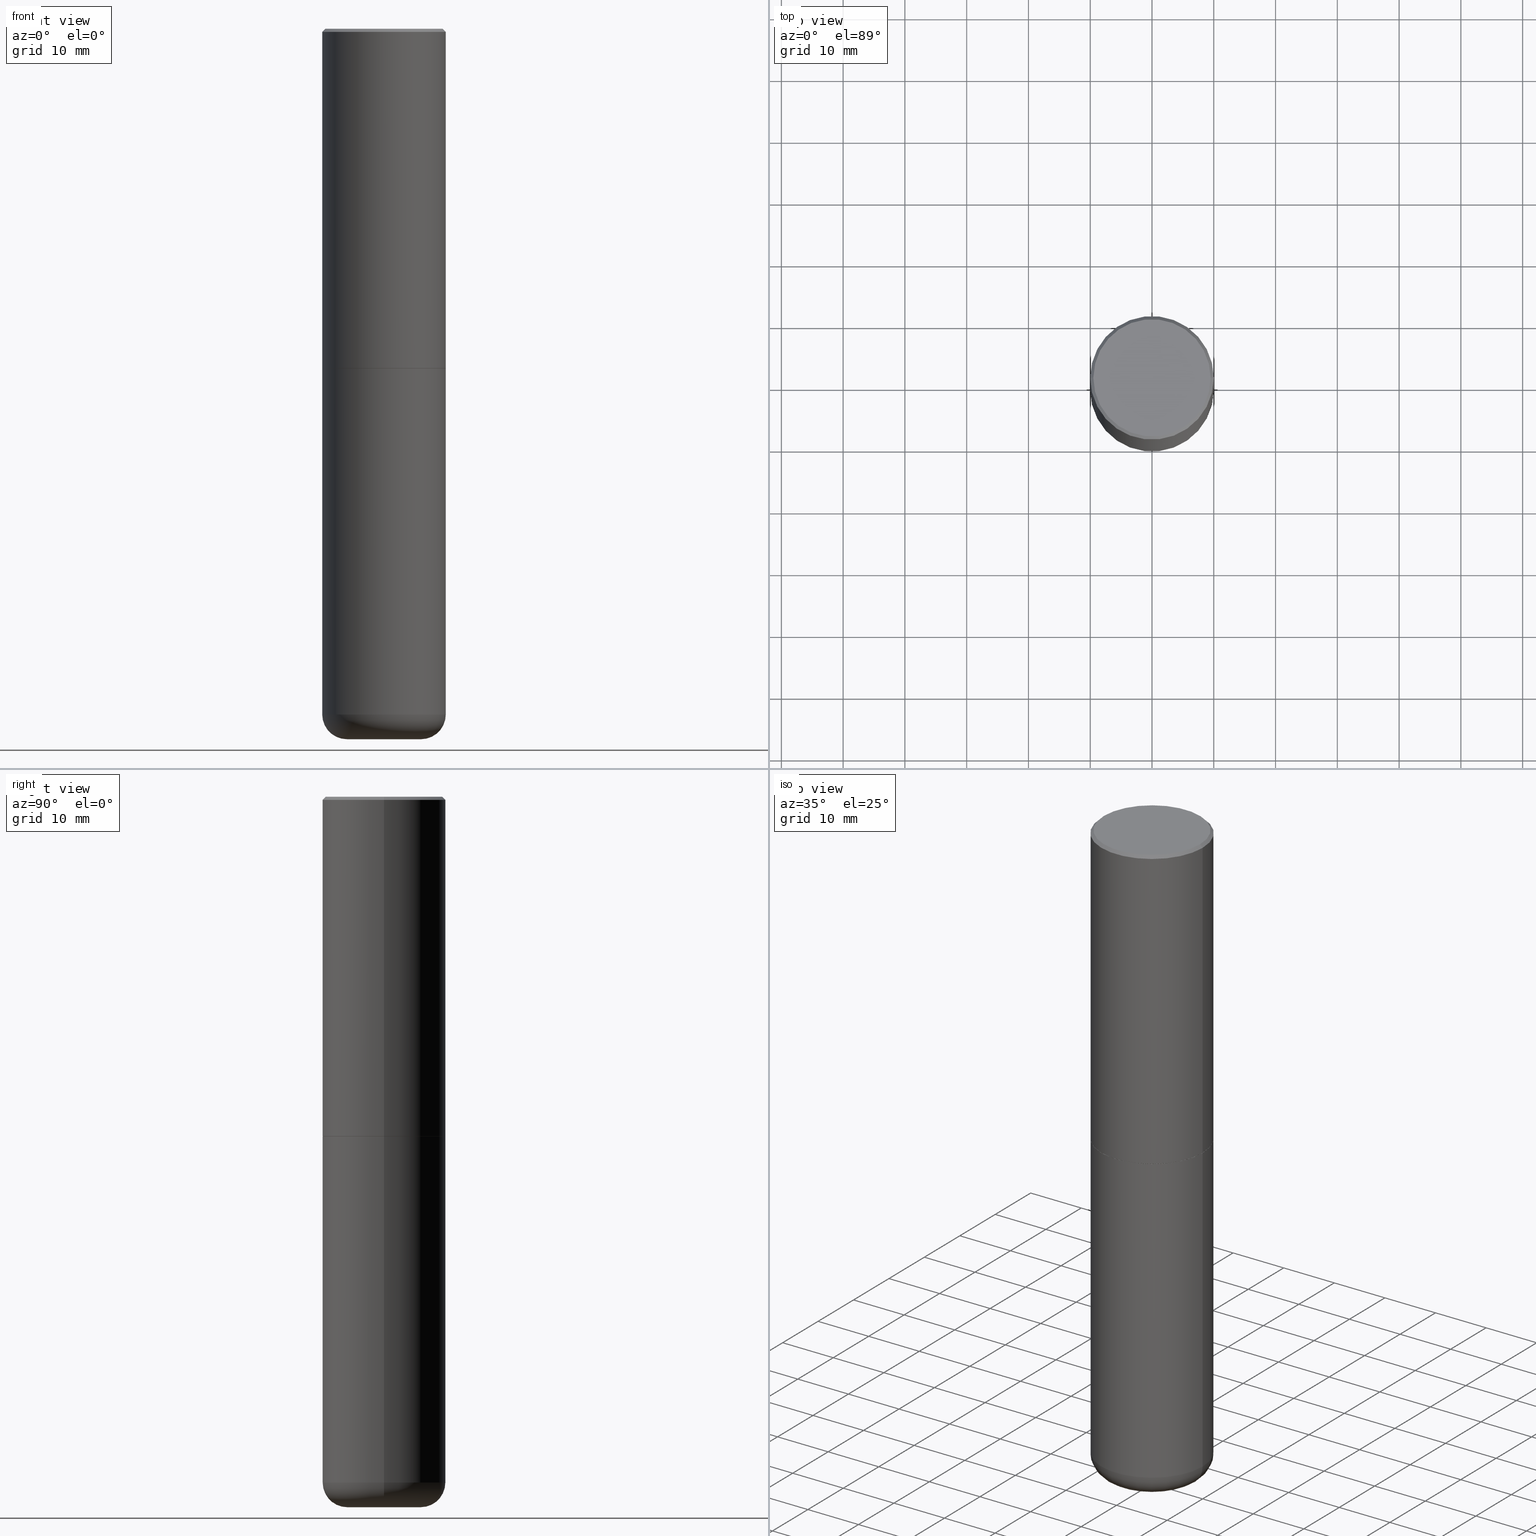
[diagram: canonical four-view strip — front | top / right | iso, engineering-drawing reading convention]
A machine part, canonical four-view strip (front | top / right | iso — engineering-drawing reading convention). The complete STEP part file that produces these views, byte-faithful:
ISO-10303-21;
HEADER;
FILE_DESCRIPTION (( 'STEP AP203' ),
    '1' );
FILE_NAME ('74837.STEP',
    '2024-05-02T19:22:41',
    ( '' ),
    ( '' ),
    'SwSTEP 2.0',
    'SolidWorks 2023',
    '' );
FILE_SCHEMA (( 'CONFIG_CONTROL_DESIGN' ));
ENDSEC;

DATA;
#1 = DATE_AND_TIME ( #328, #283 ) ;
#2 = CIRCLE ( 'NONE', #246, 0.3937000000000000499 ) ;
#3 = ADVANCED_FACE ( 'NONE', ( #124 ), #157, .F. ) ;
#4 = APPROVAL_DATE_TIME ( #344, #407 ) ;
#5 = VERTEX_POINT ( 'NONE', #263 ) ;
#6 = PERSON_AND_ORGANIZATION ( #203, #158 ) ;
#7 = DIRECTION ( 'NONE',  ( -2.445468806185136597E-29, 3.491481338843145583E-15, 1.000000000000000000 ) ) ;
#8 = AXIS2_PLACEMENT_3D ( 'NONE', #183, #410, #210 ) ;
#9 = ORIENTED_EDGE ( 'NONE', *, *, #236, .F. ) ;
#10 = CARTESIAN_POINT ( 'NONE',  ( -0.3937000000000001054, 2.797406750687515181E-15, -1.936584745033357016E-29 ) ) ;
#11 = VERTEX_POINT ( 'NONE', #304 ) ;
#12 = EDGE_CURVE ( 'NONE', #5, #191, #192, .T. ) ;
#13 = DIRECTION ( 'NONE',  ( -1.000000000000000000, 6.982962677686265922E-15, -4.876176775795935793E-29 ) ) ;
#14 = VECTOR ( 'NONE', #386, 39.37007874015748143 ) ;
#15 = ORIENTED_EDGE ( 'NONE', *, *, #324, .T. ) ;
#16 = CC_DESIGN_DATE_AND_TIME_ASSIGNMENT ( #123, #64, ( #178 ) ) ;
#17 = DIRECTION ( 'NONE',  ( -2.445468806185136597E-29, 3.491481338843145583E-15, 1.000000000000000000 ) ) ;
#18 = DIRECTION ( 'NONE',  ( 1.000000000000000000, -6.982962677686266711E-15, 4.877734241229876808E-29 ) ) ;
#19 = CARTESIAN_POINT ( 'NONE',  ( 0.000000000000000000, 0.000000000000000000, 0.000000000000000000 ) ) ;
#20 = CARTESIAN_POINT ( 'NONE',  ( -0.2362000000000000210, -1.357982065701307100E-14, -4.370099999999998985 ) ) ;
#21 = DIRECTION ( 'NONE',  ( 1.000000000000000000, -6.982962677686268288E-15, 0.000000000000000000 ) ) ;
#22 = CIRCLE ( 'NONE', #216, 0.3937000000000001054 ) ;
#23 = ORIENTED_EDGE ( 'NONE', *, *, #12, .F. ) ;
#24 = CARTESIAN_POINT ( 'NONE',  ( 1.068694322990966450E-28, -1.525812259887842897E-14, -4.370099999999998985 ) ) ;
#25 = PERSON_AND_ORGANIZATION ( #203, #158 ) ;
#26 = APPROVAL_ROLE ( '' ) ;
#27 = ORIENTED_EDGE ( 'NONE', *, *, #194, .F. ) ;
#28 = CONICAL_SURFACE ( 'NONE', #193, 0.3926999999999999935, 0.7853981633975507526 ) ;
#29 = SECURITY_CLASSIFICATION ( '', '', #65 ) ;
#30 = LENGTH_MEASURE_WITH_UNIT ( LENGTH_MEASURE( 0.02539999999999999897 ), #59 );
#31 = DIRECTION ( 'NONE',  ( -2.445468806185136597E-29, 3.491481338843145583E-15, 1.000000000000000000 ) ) ;
#32 = ORIENTED_EDGE ( 'NONE', *, *, #71, .T. ) ;
#33 = CARTESIAN_POINT ( 'NONE',  ( 5.295418152913293224E-29, -7.560453691130945845E-15, -2.165399999999999547 ) ) ;
#34 = VECTOR ( 'NONE', #47, 39.37007874015748143 ) ;
#35 = PERSON_AND_ORGANIZATION_ROLE ( 'design_supplier' ) ;
#36 = LOCAL_TIME ( 15, 22, 41.00000000000000000, #55 ) ;
#37 = CARTESIAN_POINT ( 'NONE',  ( -5.532412495976664402E-45, 7.898818803016371119E-31, 2.262311619753217762E-16 ) ) ;
#38 = AXIS2_PLACEMENT_3D ( 'NONE', #385, #31, #222 ) ;
#39 = APPLICATION_CONTEXT ( 'configuration controlled 3d designs of mechanical parts and assemblies' ) ;
#40 = ORIENTED_EDGE ( 'NONE', *, *, #278, .F. ) ;
#41 = VERTEX_POINT ( 'NONE', #70 ) ;
#42 = DIRECTION ( 'NONE',  ( 1.000000000000000000, -6.982962677686261977E-15, 0.000000000000000000 ) ) ;
#43 = VERTEX_POINT ( 'NONE', #239 ) ;
#44 = EDGE_CURVE ( 'NONE', #245, #342, #307, .T. ) ;
#45 = FACE_OUTER_BOUND ( 'NONE', #271, .T. ) ;
#46 = CIRCLE ( 'NONE', #336, 0.1575000000000000566 ) ;
#47 = DIRECTION ( 'NONE',  ( -2.445468806185136877E-29, 3.491481338843145188E-15, 1.000000000000000000 ) ) ;
#48 = CARTESIAN_POINT ( 'NONE',  ( 0.3926999999999999935, -1.030266313465834305E-14, -2.165399999999999547 ) ) ;
#49 = DIRECTION ( 'NONE',  ( -2.445468806185136597E-29, 3.491481338843145583E-15, 1.000000000000000000 ) ) ;
#50 = CARTESIAN_POINT ( 'NONE',  ( 0.3937000000000001054, -2.770807688499516128E-15, -0.02000000000000008715 ) ) ;
#51 = DESIGN_CONTEXT ( 'detailed design', #39, 'design' ) ;
#52 = PLANE ( 'NONE',  #163 ) ;
#53 = CIRCLE ( 'NONE', #282, 0.3926999999999999935 ) ;
#54 = DIRECTION ( 'NONE',  ( -2.445468806185136597E-29, 3.491481338843145583E-15, 1.000000000000000000 ) ) ;
#55 = COORDINATED_UNIVERSAL_TIME_OFFSET ( 5, 0, .BEHIND. ) ;
#56 = ADVANCED_FACE ( 'NONE', ( #202 ), #362, .T. ) ;
#57 = EDGE_LOOP ( 'NONE', ( #32, #190 ) ) ;
#58 = ADVANCED_FACE ( 'NONE', ( #398 ), #241, .T. ) ;
#59 =( LENGTH_UNIT ( ) NAMED_UNIT ( * ) SI_UNIT ( $, .METRE. ) );
#60 = AXIS2_PLACEMENT_3D ( 'NONE', #37, #7, #98 ) ;
#61 = CC_DESIGN_APPROVAL ( #228, ( #311 ) ) ;
#62 = CARTESIAN_POINT ( 'NONE',  ( -0.3937000000000002720, -1.015989167596965718E-15, -2.164399999999999658 ) ) ;
#63 = ORIENTED_EDGE ( 'NONE', *, *, #99, .F. ) ;
#64 = DATE_TIME_ROLE ( 'creation_date' ) ;
#65 = SECURITY_CLASSIFICATION_LEVEL ( 'unclassified' ) ;
#66 = AXIS2_PLACEMENT_3D ( 'NONE', #79, #49, #289 ) ;
#67 =( GEOMETRIC_REPRESENTATION_CONTEXT ( 3 ) GLOBAL_UNCERTAINTY_ASSIGNED_CONTEXT ( ( #221 ) ) GLOBAL_UNIT_ASSIGNED_CONTEXT ( ( #267, #414, #391 ) ) REPRESENTATION_CONTEXT ( 'NONE', 'WORKASPACE' ) );
#68 = COORDINATED_UNIVERSAL_TIME_OFFSET ( 5, 0, .BEHIND. ) ;
#69 = ORIENTED_EDGE ( 'NONE', *, *, #278, .T. ) ;
#70 = CARTESIAN_POINT ( 'NONE',  ( 0.2362000000000000766, -1.745740669421572042E-14, -4.527599999999999625 ) ) ;
#71 = EDGE_CURVE ( 'NONE', #195, #43, #94, .T. ) ;
#72 = ORIENTED_EDGE ( 'NONE', *, *, #44, .T. ) ;
#73 = CIRCLE ( 'NONE', #254, 0.1575000000000000566 ) ;
#74 = FACE_OUTER_BOUND ( 'NONE', #367, .T. ) ;
#75 = EDGE_CURVE ( 'NONE', #342, #175, #153, .T. ) ;
#76 = EDGE_LOOP ( 'NONE', ( #332, #265, #264, #357 ) ) ;
#77 = EDGE_LOOP ( 'NONE', ( #174, #140 ) ) ;
#78 = DIRECTION ( 'NONE',  ( 1.000000000000000000, -6.982962677686262766E-15, 0.000000000000000000 ) ) ;
#79 = CARTESIAN_POINT ( 'NONE',  ( 5.295418152913293224E-29, -7.560453691130945845E-15, -2.165399999999999547 ) ) ;
#80 = AXIS2_PLACEMENT_3D ( 'NONE', #24, #151, #42 ) ;
#81 = EDGE_LOOP ( 'NONE', ( #224, #229, #15, #333 ) ) ;
#82 = EDGE_CURVE ( 'NONE', #43, #195, #2, .T. ) ;
#83 = FACE_OUTER_BOUND ( 'NONE', #76, .T. ) ;
#84 = CARTESIAN_POINT ( 'NONE',  ( 1.068694322990966450E-28, -1.525812259887842897E-14, -4.370099999999998985 ) ) ;
#85 = AXIS2_PLACEMENT_3D ( 'NONE', #84, #17, #286 ) ;
#86 = CC_DESIGN_APPROVAL ( #407, ( #29 ) ) ;
#87 = ADVANCED_FACE ( 'NONE', ( #110 ), #319, .T. ) ;
#88 = CARTESIAN_POINT ( 'NONE',  ( 5.295418152913293224E-29, -7.560453691130945845E-15, -2.165399999999999547 ) ) ;
#89 = APPROVAL_STATUS ( 'not_yet_approved' ) ;
#90 = ORIENTED_EDGE ( 'NONE', *, *, #236, .T. ) ;
#91 = DIRECTION ( 'NONE',  ( 1.000000000000000000, -6.982962677686261977E-15, 0.000000000000000000 ) ) ;
#92 = ORIENTED_EDGE ( 'NONE', *, *, #117, .F. ) ;
#93 = FACE_OUTER_BOUND ( 'NONE', #379, .T. ) ;
#94 = CIRCLE ( 'NONE', #403, 0.3937000000000000499 ) ;
#95 = DIRECTION ( 'NONE',  ( 1.000000000000000000, -6.982962677686266711E-15, 4.876176775795935793E-29 ) ) ;
#96 = APPROVAL_ROLE ( '' ) ;
#97 = EDGE_LOOP ( 'NONE', ( #184, #284, #172, #371 ) ) ;
#98 = DIRECTION ( 'NONE',  ( 1.000000000000000000, -6.982962677686266711E-15, 4.877734241229876808E-29 ) ) ;
#99 = EDGE_CURVE ( 'NONE', #338, #195, #248, .T. ) ;
#100 = DIRECTION ( 'NONE',  ( -0.7071067811866199593, 7.493145998870616062E-15, 0.7071067811864750752 ) ) ;
#101 = ORIENTED_EDGE ( 'NONE', *, *, #82, .F. ) ;
#102 = DATE_AND_TIME ( #272, #113 ) ;
#103 = APPLICATION_CONTEXT ( 'configuration controlled 3d designs of mechanical parts and assemblies' ) ;
#104 = DIRECTION ( 'NONE',  ( -2.445468806185136597E-29, 3.491481338843145583E-15, 1.000000000000000000 ) ) ;
#105 = CONICAL_SURFACE ( 'NONE', #382, 0.3937000000000001054, 0.7853981633974453924 ) ;
#106 = CARTESIAN_POINT ( 'NONE',  ( 0.000000000000000000, 0.000000000000000000, 0.000000000000000000 ) ) ;
#107 = EDGE_LOOP ( 'NONE', ( #72, #390, #40, #405 ) ) ;
#108 = DIRECTION ( 'NONE',  ( 7.105427357601001859E-15, 1.000000000000000000, -3.491481338843145583E-15 ) ) ;
#109 = CARTESIAN_POINT ( 'NONE',  ( 1.107210456688382298E-28, -1.580803090974622389E-14, -4.527599999999999625 ) ) ;
#110 = FACE_OUTER_BOUND ( 'NONE', #107, .T. ) ;
#111 = CARTESIAN_POINT ( 'NONE',  ( 0.3736999999999999211, -2.667287895133367964E-15, 2.262311619753402158E-16 ) ) ;
#112 = CARTESIAN_POINT ( 'NONE',  ( -5.532412495976664402E-45, 7.898818803016371119E-31, 2.262311619753217762E-16 ) ) ;
#113 = LOCAL_TIME ( 15, 22, 41.00000000000000000, #68 ) ;
#114 = ADVANCED_FACE ( 'NONE', ( #137 ), #260, .T. ) ;
#115 = DIRECTION ( 'NONE',  ( -2.445468806185136597E-29, 3.491481338843145583E-15, 1.000000000000000000 ) ) ;
#116 = ADVANCED_FACE ( 'NONE', ( #281 ), #302, .T. ) ;
#117 = EDGE_CURVE ( 'NONE', #191, #5, #355, .T. ) ;
#118 = VECTOR ( 'NONE', #100, 39.37007874015748143 ) ;
#119 = APPROVAL_DATE_TIME ( #1, #127 ) ;
#120 = DIRECTION ( 'NONE',  ( -1.000000000000000000, 6.982962677686265922E-15, -4.876176775795935793E-29 ) ) ;
#121 = ORIENTED_EDGE ( 'NONE', *, *, #370, .F. ) ;
#122 = DIRECTION ( 'NONE',  ( -2.445468806185136597E-29, 3.491481338843145583E-15, 1.000000000000000000 ) ) ;
#123 = DATE_AND_TIME ( #356, #36 ) ;
#124 = FACE_OUTER_BOUND ( 'NONE', #326, .T. ) ;
#125 = AXIS2_PLACEMENT_3D ( 'NONE', #287, #173, #78 ) ;
#126 = PERSON_AND_ORGANIZATION ( #203, #158 ) ;
#127 = APPROVAL ( #89, 'UNSPECIFIED' ) ;
#128 = APPROVAL_DATE_TIME ( #240, #228 ) ;
#129 = ADVANCED_FACE ( 'NONE', ( #354 ), #52, .T. ) ;
#130 = CARTESIAN_POINT ( 'NONE',  ( 1.068694322990966450E-28, -1.525812259887842897E-14, -4.370099999999998985 ) ) ;
#131 = CARTESIAN_POINT ( 'NONE',  ( 0.000000000000000000, 0.000000000000000000, 0.000000000000000000 ) ) ;
#132 = VECTOR ( 'NONE', #247, 39.37007874015748143 ) ;
#133 = DIRECTION ( 'NONE',  ( 1.000000000000000000, -6.982962677686265922E-15, 4.876176775795935793E-29 ) ) ;
#134 = DIRECTION ( 'NONE',  ( 1.000000000000000000, -6.982962677686261977E-15, 4.883557194083110659E-29 ) ) ;
#135 = PRODUCT ( '74837', '74837', '', ( #365 ) ) ;
#136 = COORDINATED_UNIVERSAL_TIME_OFFSET ( 5, 0, .BEHIND. ) ;
#137 = FACE_OUTER_BOUND ( 'NONE', #81, .T. ) ;
#138 = ORIENTED_EDGE ( 'NONE', *, *, #285, .F. ) ;
#139 = ORIENTED_EDGE ( 'NONE', *, *, #117, .T. ) ;
#140 = ORIENTED_EDGE ( 'NONE', *, *, #320, .F. ) ;
#141 = VECTOR ( 'NONE', #213, 39.37007874015748143 ) ;
#142 = CC_DESIGN_SECURITY_CLASSIFICATION ( #29, ( #311 ) ) ;
#143 = DIRECTION ( 'NONE',  ( -1.000000000000000000, 6.982962677686266711E-15, 0.000000000000000000 ) ) ;
#144 = PLANE ( 'NONE',  #309 ) ;
#145 = DIRECTION ( 'NONE',  ( 2.445468806185136597E-29, -3.491481338843145583E-15, -1.000000000000000000 ) ) ;
#146 = PRODUCT_RELATED_PRODUCT_CATEGORY ( 'detail', '', ( #135 ) ) ;
#147 = DIRECTION ( 'NONE',  ( 2.438088387897960049E-29, -3.491481338843145188E-15, -1.000000000000000000 ) ) ;
#148 = DIRECTION ( 'NONE',  ( -2.445468806185136597E-29, 3.491481338843145583E-15, 1.000000000000000000 ) ) ;
#149 = DIRECTION ( 'NONE',  ( -2.445468806185136877E-29, 3.491481338843145188E-15, 1.000000000000000000 ) ) ;
#150 = VECTOR ( 'NONE', #149, 39.37007874015748143 ) ;
#151 = DIRECTION ( 'NONE',  ( -2.445468806185136597E-29, 3.491481338843145583E-15, 1.000000000000000000 ) ) ;
#152 = ADVANCED_FACE ( 'NONE', ( #301 ), #144, .F. ) ;
#153 = LINE ( 'NONE', #294, #14 ) ;
#154 = CARTESIAN_POINT ( 'NONE',  ( -0.2362000000000000766, -1.329522240803589203E-14, -4.527599999999999625 ) ) ;
#155 = DIRECTION ( 'NONE',  ( -2.445468806185136597E-29, 3.491481338843145583E-15, 1.000000000000000000 ) ) ;
#156 = AXIS2_PLACEMENT_3D ( 'NONE', #109, #381, #351 ) ;
#157 = PLANE ( 'NONE',  #334 ) ;
#158 = ORGANIZATION ( 'UNSPECIFIED', 'UNSPECIFIED', '' ) ;
#159 = APPLICATION_PROTOCOL_DEFINITION ( 'international standard', 'config_control_design', 1994, #103 ) ;
#160 = ADVANCED_BREP_SHAPE_REPRESENTATION ( '74837', ( #404, #266, #255 ), #67 ) ;
#161 = PERSON_AND_ORGANIZATION ( #203, #158 ) ;
#162 = CARTESIAN_POINT ( 'NONE',  ( 0.3937000000000001054, -2.770807688499516128E-15, -0.02000000000000008715 ) ) ;
#163 = AXIS2_PLACEMENT_3D ( 'NONE', #187, #226, #337 ) ;
#164 = CALENDAR_DATE ( 2024, 2, 5 ) ;
#165 = EDGE_CURVE ( 'NONE', #11, #342, #276, .T. ) ;
#166 = EDGE_CURVE ( 'NONE', #211, #43, #369, .T. ) ;
#167 = VERTEX_POINT ( 'NONE', #168 ) ;
#168 = CARTESIAN_POINT ( 'NONE',  ( 0.3926999999999999935, -1.030266313465834305E-14, -2.165399999999999547 ) ) ;
#169 = DIRECTION ( 'NONE',  ( -2.438088387897960049E-29, 3.491481338843145188E-15, 1.000000000000000000 ) ) ;
#170 = DIRECTION ( 'NONE',  ( -2.445468806185136597E-29, 3.491481338843145583E-15, 1.000000000000000000 ) ) ;
#171 = APPROVAL_PERSON_ORGANIZATION ( #394, #407, #96 ) ;
#172 = ORIENTED_EDGE ( 'NONE', *, *, #250, .T. ) ;
#173 = DIRECTION ( 'NONE',  ( -2.445468806185136597E-29, 3.491481338843145583E-15, 1.000000000000000000 ) ) ;
#174 = ORIENTED_EDGE ( 'NONE', *, *, #199, .F. ) ;
#175 = VERTEX_POINT ( 'NONE', #252 ) ;
#176 = CIRCLE ( 'NONE', #66, 0.3926999999999999935 ) ;
#177 = CARTESIAN_POINT ( 'NONE',  ( -0.3937000000000001054, 2.679362779428220707E-15, -0.02000000000000008715 ) ) ;
#178 = PRODUCT_DEFINITION ( 'UNKNOWN', '', #311, #51 ) ;
#179 = ORIENTED_EDGE ( 'NONE', *, *, #370, .T. ) ;
#180 = DIRECTION ( 'NONE',  ( 1.000000000000000000, -6.982962677686265133E-15, 0.000000000000000000 ) ) ;
#181 = EDGE_CURVE ( 'NONE', #167, #11, #53, .T. ) ;
#182 = DIRECTION ( 'NONE',  ( 1.000000000000000000, -6.982962677686268288E-15, 0.000000000000000000 ) ) ;
#183 = CARTESIAN_POINT ( 'NONE',  ( 4.890937612370294178E-31, -6.982962677686321191E-17, -0.02000000000000008715 ) ) ;
#184 = ORIENTED_EDGE ( 'NONE', *, *, #75, .F. ) ;
#185 = DIRECTION ( 'NONE',  ( -1.000000000000000000, 7.105427357601006592E-15, 0.000000000000000000 ) ) ;
#186 = AXIS2_PLACEMENT_3D ( 'NONE', #279, #104, #244 ) ;
#187 = CARTESIAN_POINT ( 'NONE',  ( 1.107210456688382298E-28, -1.580803090974622389E-14, -4.527599999999999625 ) ) ;
#188 = CARTESIAN_POINT ( 'NONE',  ( 1.068694322990966450E-28, -1.525812259887842897E-14, -4.370099999999998985 ) ) ;
#189 = PERSON_AND_ORGANIZATION ( #203, #158 ) ;
#190 = ORIENTED_EDGE ( 'NONE', *, *, #82, .T. ) ;
#191 = VERTEX_POINT ( 'NONE', #111 ) ;
#192 = CIRCLE ( 'NONE', #60, 0.3736999999999999211 ) ;
#193 = AXIS2_PLACEMENT_3D ( 'NONE', #257, #115, #21 ) ;
#194 = EDGE_CURVE ( 'NONE', #393, #211, #46, .T. ) ;
#195 = VERTEX_POINT ( 'NONE', #321 ) ;
#196 = ADVANCED_FACE ( 'NONE', ( #74 ), #350, .T. ) ;
#197 = EDGE_LOOP ( 'NONE', ( #9, #23, #317, #231 ) ) ;
#198 = CARTESIAN_POINT ( 'NONE',  ( 0.000000000000000000, 0.000000000000000000, 0.000000000000000000 ) ) ;
#199 = EDGE_CURVE ( 'NONE', #41, #393, #268, .T. ) ;
#200 = AXIS2_PLACEMENT_3D ( 'NONE', #131, #122, #95 ) ;
#201 = APPROVAL_STATUS ( 'not_yet_approved' ) ;
#202 = FACE_OUTER_BOUND ( 'NONE', #235, .T. ) ;
#203 = PERSON ( 'UNSPECIFIED', 'UNSPECIFIED', 'UNSPECIFIED', ('UNSPECIFIED'), ('UNSPECIFIED'), ('UNSPECIFIED') ) ;
#204 = ORIENTED_EDGE ( 'NONE', *, *, #194, .T. ) ;
#205 = AXIS2_PLACEMENT_3D ( 'NONE', #343, #170, #310 ) ;
#206 = AXIS2_PLACEMENT_3D ( 'NONE', #112, #258, #18 ) ;
#207 = DATE_TIME_ROLE ( 'classification_date' ) ;
#208 = ORIENTED_EDGE ( 'NONE', *, *, #352, .T. ) ;
#209 = CARTESIAN_POINT ( 'NONE',  ( 5.295418152913293224E-29, -7.560453691130945845E-15, -2.165399999999999547 ) ) ;
#210 = DIRECTION ( 'NONE',  ( 1.000000000000000000, -6.982962677686266711E-15, 0.000000000000000000 ) ) ;
#211 = VERTEX_POINT ( 'NONE', #220 ) ;
#212 = CC_DESIGN_DATE_AND_TIME_ASSIGNMENT ( #102, #207, ( #29 ) ) ;
#213 = DIRECTION ( 'NONE',  ( 0.7071067811865454633, -7.319954787623248157E-15, -0.7071067811865495711 ) ) ;
#214 = ADVANCED_FACE ( 'NONE', ( #353 ), #105, .T. ) ;
#215 = ORIENTED_EDGE ( 'NONE', *, *, #181, .F. ) ;
#216 = AXIS2_PLACEMENT_3D ( 'NONE', #188, #155, #91 ) ;
#217 = LINE ( 'NONE', #50, #141 ) ;
#218 = DIRECTION ( 'NONE',  ( 1.000000000000000000, -6.982962677686266711E-15, 4.876176775795935793E-29 ) ) ;
#219 = CARTESIAN_POINT ( 'NONE',  ( 4.890937612370294178E-31, -6.982962677686321191E-17, -0.02000000000000008715 ) ) ;
#220 = CARTESIAN_POINT ( 'NONE',  ( -0.3937000000000001054, -1.246071584819091497E-14, -4.370099999999998985 ) ) ;
#221 = UNCERTAINTY_MEASURE_WITH_UNIT (LENGTH_MEASURE( 1.000000000000000082E-05 ), #267, 'distance_accuracy_value', 'NONE');
#222 = DIRECTION ( 'NONE',  ( 1.000000000000000000, -6.982962677686269077E-15, 0.000000000000000000 ) ) ;
#223 = AXIS2_PLACEMENT_3D ( 'NONE', #19, #288, #218 ) ;
#224 = ORIENTED_EDGE ( 'NONE', *, *, #165, .F. ) ;
#225 = APPROVAL_ROLE ( '' ) ;
#226 = DIRECTION ( 'NONE',  ( 2.438088387897960049E-29, -3.491481338843145188E-15, -1.000000000000000000 ) ) ;
#227 = DIRECTION ( 'NONE',  ( 1.000000000000000000, -6.982962677686266711E-15, 4.876176775795935793E-29 ) ) ;
#228 = APPROVAL ( #331, 'UNSPECIFIED' ) ;
#229 = ORIENTED_EDGE ( 'NONE', *, *, #242, .T. ) ;
#230 = DIRECTION ( 'NONE',  ( 0.000000000000000000, 0.000000000000000000, 1.000000000000000000 ) ) ;
#231 = ORIENTED_EDGE ( 'NONE', *, *, #296, .T. ) ;
#232 = APPROVAL_PERSON_ORGANIZATION ( #161, #127, #225 ) ;
#233 = ORIENTED_EDGE ( 'NONE', *, *, #352, .F. ) ;
#234 = APPLICATION_PROTOCOL_DEFINITION ( 'international standard', 'config_control_design', 1994, #39 ) ;
#235 = EDGE_LOOP ( 'NONE', ( #348, #204, #138, #121 ) ) ;
#236 = EDGE_CURVE ( 'NONE', #191, #415, #217, .T. ) ;
#237 = PERSON_AND_ORGANIZATION_ROLE ( 'classification_officer' ) ;
#238 = CIRCLE ( 'NONE', #80, 0.3937000000000001054 ) ;
#239 = CARTESIAN_POINT ( 'NONE',  ( -0.3937000000000000499, -8.611881394317173410E-15, -2.165399999999999547 ) ) ;
#240 = DATE_AND_TIME ( #164, #374 ) ;
#241 = CYLINDRICAL_SURFACE ( 'NONE', #200, 0.3937000000000002164 ) ;
#242 = EDGE_CURVE ( 'NONE', #11, #167, #176, .T. ) ;
#243 = COORDINATED_UNIVERSAL_TIME_OFFSET ( 5, 0, .BEHIND. ) ;
#244 = DIRECTION ( 'NONE',  ( 1.000000000000000000, -6.982962677686268288E-15, 0.000000000000000000 ) ) ;
#245 = VERTEX_POINT ( 'NONE', #349 ) ;
#246 = AXIS2_PLACEMENT_3D ( 'NONE', #88, #358, #180 ) ;
#247 = DIRECTION ( 'NONE',  ( -0.7071067811865454633, 2.468850131082235367E-15, -0.7071067811865495711 ) ) ;
#248 = LINE ( 'NONE', #322, #340 ) ;
#249 = ORIENTED_EDGE ( 'NONE', *, *, #166, .T. ) ;
#250 = EDGE_CURVE ( 'NONE', #245, #415, #291, .T. ) ;
#251 = ORIENTED_EDGE ( 'NONE', *, *, #242, .F. ) ;
#252 = CARTESIAN_POINT ( 'NONE',  ( -0.3937000000000001054, 2.679362779428220707E-15, -0.02000000000000008715 ) ) ;
#253 = LINE ( 'NONE', #177, #132 ) ;
#254 = AXIS2_PLACEMENT_3D ( 'NONE', #360, #335, #416 ) ;
#255 = AXIS2_PLACEMENT_3D ( 'NONE', #198, #230, #259 ) ;
#256 = CARTESIAN_POINT ( 'NONE',  ( 4.890937612370294178E-31, -6.982962677686321191E-17, -0.02000000000000008715 ) ) ;
#257 = CARTESIAN_POINT ( 'NONE',  ( 5.295418152913293224E-29, -7.560453691130945845E-15, -2.165399999999999547 ) ) ;
#258 = DIRECTION ( 'NONE',  ( -2.445468806185136597E-29, 3.491481338843145583E-15, 1.000000000000000000 ) ) ;
#259 = DIRECTION ( 'NONE',  ( 1.000000000000000000, 0.000000000000000000, 0.000000000000000000 ) ) ;
#260 = CONICAL_SURFACE ( 'NONE', #186, 0.3926999999999999935, 0.7853981633975507526 ) ;
#261 = CARTESIAN_POINT ( 'NONE',  ( 0.3937000000000001054, -1.800731500508351219E-14, -4.370099999999998985 ) ) ;
#262 = ADVANCED_FACE ( 'NONE', ( #45 ), #292, .T. ) ;
#263 = CARTESIAN_POINT ( 'NONE',  ( -0.3736999999999999211, 2.644447966039789453E-15, 2.262311619753034352E-16 ) ) ;
#264 = ORIENTED_EDGE ( 'NONE', *, *, #44, .F. ) ;
#265 = ORIENTED_EDGE ( 'NONE', *, *, #165, .T. ) ;
#266 = MANIFOLD_SOLID_BREP ( 'Body-Move/Copy2[2]', #411 ) ;
#267 =( CONVERSION_BASED_UNIT ( 'INCH', #30 ) LENGTH_UNIT ( ) NAMED_UNIT ( #366 ) );
#268 = CIRCLE ( 'NONE', #125, 0.2362000000000000766 ) ;
#269 = AXIS2_PLACEMENT_3D ( 'NONE', #219, #318, #314 ) ;
#270 = PERSON_AND_ORGANIZATION ( #203, #158 ) ;
#271 = EDGE_LOOP ( 'NONE', ( #400, #249, #308, #63 ) ) ;
#272 = CALENDAR_DATE ( 2024, 2, 5 ) ;
#273 = CLOSED_SHELL ( 'NONE', ( #262, #56, #313, #402, #196, #129 ) ) ;
#274 = AXIS2_PLACEMENT_3D ( 'NONE', #130, #275, #134 ) ;
#275 = DIRECTION ( 'NONE',  ( -2.445468806185136597E-29, 3.491481338843145583E-15, 1.000000000000000000 ) ) ;
#276 = LINE ( 'NONE', #399, #118 ) ;
#277 = ORIENTED_EDGE ( 'NONE', *, *, #99, .T. ) ;
#278 = EDGE_CURVE ( 'NONE', #415, #175, #417, .T. ) ;
#279 = CARTESIAN_POINT ( 'NONE',  ( 5.295418152913293224E-29, -7.560453691130945845E-15, -2.165399999999999547 ) ) ;
#280 = EDGE_CURVE ( 'NONE', #5, #175, #253, .T. ) ;
#281 = FACE_OUTER_BOUND ( 'NONE', #315, .T. ) ;
#282 = AXIS2_PLACEMENT_3D ( 'NONE', #406, #378, #182 ) ;
#283 = LOCAL_TIME ( 15, 22, 41.00000000000000000, #300 ) ;
#284 = ORIENTED_EDGE ( 'NONE', *, *, #409, .T. ) ;
#285 = EDGE_CURVE ( 'NONE', #338, #211, #238, .T. ) ;
#286 = DIRECTION ( 'NONE',  ( 1.000000000000000000, -6.982962677686261977E-15, 4.883557194083110659E-29 ) ) ;
#287 = CARTESIAN_POINT ( 'NONE',  ( 1.107210456688382298E-28, -1.580803090974622389E-14, -4.527599999999999625 ) ) ;
#288 = DIRECTION ( 'NONE',  ( -2.445468806185136597E-29, 3.491481338843145583E-15, 1.000000000000000000 ) ) ;
#289 = DIRECTION ( 'NONE',  ( 1.000000000000000000, -6.982962677686268288E-15, 0.000000000000000000 ) ) ;
#290 = DIRECTION ( 'NONE',  ( 1.000000000000000000, -6.982962677686265133E-15, 0.000000000000000000 ) ) ;
#291 = LINE ( 'NONE', #327, #150 ) ;
#292 = CYLINDRICAL_SURFACE ( 'NONE', #316, 0.3937000000000001054 ) ;
#293 = ORIENTED_EDGE ( 'NONE', *, *, #166, .F. ) ;
#294 = CARTESIAN_POINT ( 'NONE',  ( -0.3937000000000002164, 2.797406750687515970E-15, -1.936584745033357576E-29 ) ) ;
#295 = CC_DESIGN_PERSON_AND_ORGANIZATION_ASSIGNMENT ( #6, #237, ( #29 ) ) ;
#296 = EDGE_CURVE ( 'NONE', #175, #415, #392, .T. ) ;
#297 = AXIS2_PLACEMENT_3D ( 'NONE', #408, #147, #13 ) ;
#298 = LOCAL_TIME ( 15, 22, 41.00000000000000000, #243 ) ;
#299 = CARTESIAN_POINT ( 'NONE',  ( 2.609533152651356620E-15, 0.3736999999999999211, -1.191650995338022328E-15 ) ) ;
#300 = COORDINATED_UNIVERSAL_TIME_OFFSET ( 5, 0, .BEHIND. ) ;
#301 = FACE_OUTER_BOUND ( 'NONE', #361, .T. ) ;
#302 = CONICAL_SURFACE ( 'NONE', #373, 0.3937000000000001054, 0.7853981633974453924 ) ;
#303 = PERSON_AND_ORGANIZATION_ROLE ( 'creator' ) ;
#304 = CARTESIAN_POINT ( 'NONE',  ( -0.3926999999999999935, -4.764853913452808876E-15, -2.165399999999999547 ) ) ;
#305 = CC_DESIGN_PERSON_AND_ORGANIZATION_ASSIGNMENT ( #25, #359, ( #178 ) ) ;
#306 = PRODUCT_DEFINITION_SHAPE ( 'NONE', 'NONE',  #178 ) ;
#307 = CIRCLE ( 'NONE', #205, 0.3937000000000002720 ) ;
#308 = ORIENTED_EDGE ( 'NONE', *, *, #71, .F. ) ;
#309 = AXIS2_PLACEMENT_3D ( 'NONE', #209, #169, #133 ) ;
#310 = DIRECTION ( 'NONE',  ( 1.000000000000000000, -6.982962677686269077E-15, 0.000000000000000000 ) ) ;
#311 = PRODUCT_DEFINITION_FORMATION_WITH_SPECIFIED_SOURCE ( 'ANY', '', #135, .NOT_KNOWN. ) ;
#312 = DIRECTION ( 'NONE',  ( -2.445468806185136877E-29, 3.491481338843145188E-15, 1.000000000000000000 ) ) ;
#313 = ADVANCED_FACE ( 'NONE', ( #375 ), #384, .F. ) ;
#314 = DIRECTION ( 'NONE',  ( 1.000000000000000000, -6.982962677686266711E-15, 0.000000000000000000 ) ) ;
#315 = EDGE_LOOP ( 'NONE', ( #92, #90, #69, #345 ) ) ;
#316 = AXIS2_PLACEMENT_3D ( 'NONE', #106, #346, #413 ) ;
#317 = ORIENTED_EDGE ( 'NONE', *, *, #280, .T. ) ;
#318 = DIRECTION ( 'NONE',  ( -2.445468806185136597E-29, 3.491481338843145583E-15, 1.000000000000000000 ) ) ;
#319 = CYLINDRICAL_SURFACE ( 'NONE', #223, 0.3937000000000002164 ) ;
#320 = EDGE_CURVE ( 'NONE', #393, #41, #412, .T. ) ;
#321 = CARTESIAN_POINT ( 'NONE',  ( 0.3937000000000000499, -1.030964609733602906E-14, -2.165399999999999547 ) ) ;
#322 = CARTESIAN_POINT ( 'NONE',  ( 0.3937000000000001054, -2.749192406205084005E-15, 1.919750796630860452E-29 ) ) ;
#323 = LINE ( 'NONE', #48, #396 ) ;
#324 = EDGE_CURVE ( 'NONE', #167, #245, #323, .T. ) ;
#325 = AXIS2_PLACEMENT_3D ( 'NONE', #339, #54, #227 ) ;
#326 = EDGE_LOOP ( 'NONE', ( #377, #139 ) ) ;
#327 = CARTESIAN_POINT ( 'NONE',  ( 0.3937000000000002164, -2.749192406205084794E-15, 1.919750796630861012E-29 ) ) ;
#328 = CALENDAR_DATE ( 2024, 2, 5 ) ;
#329 = ADVANCED_FACE ( 'NONE', ( #83 ), #28, .T. ) ;
#330 = DIRECTION ( 'NONE',  ( -1.000000000000000000, 6.982962677686266711E-15, 0.000000000000000000 ) ) ;
#331 = APPROVAL_STATUS ( 'not_yet_approved' ) ;
#332 = ORIENTED_EDGE ( 'NONE', *, *, #181, .T. ) ;
#333 = ORIENTED_EDGE ( 'NONE', *, *, #409, .F. ) ;
#334 = AXIS2_PLACEMENT_3D ( 'NONE', #299, #418, #120 ) ;
#335 = DIRECTION ( 'NONE',  ( -6.982962677686266711E-15, -1.000000000000000000, 3.491481338843145583E-15 ) ) ;
#336 = AXIS2_PLACEMENT_3D ( 'NONE', #20, #108, #185 ) ;
#337 = DIRECTION ( 'NONE',  ( -1.000000000000000000, 6.982962677686265922E-15, -4.876176775795935793E-29 ) ) ;
#338 = VERTEX_POINT ( 'NONE', #261 ) ;
#339 = CARTESIAN_POINT ( 'NONE',  ( 0.000000000000000000, 0.000000000000000000, 0.000000000000000000 ) ) ;
#340 = VECTOR ( 'NONE', #312, 39.37007874015748143 ) ;
#341 = CC_DESIGN_PERSON_AND_ORGANIZATION_ASSIGNMENT ( #270, #35, ( #311 ) ) ;
#342 = VERTEX_POINT ( 'NONE', #62 ) ;
#343 = CARTESIAN_POINT ( 'NONE',  ( 5.292972684107107621E-29, -7.556962209792102838E-15, -2.164399999999999658 ) ) ;
#344 = DATE_AND_TIME ( #372, #298 ) ;
#345 = ORIENTED_EDGE ( 'NONE', *, *, #280, .F. ) ;
#346 = DIRECTION ( 'NONE',  ( -2.445468806185136597E-29, 3.491481338843145583E-15, 1.000000000000000000 ) ) ;
#347 = DIRECTION ( 'NONE',  ( 2.445468806185136597E-29, -3.491481338843145583E-15, -1.000000000000000000 ) ) ;
#348 = ORIENTED_EDGE ( 'NONE', *, *, #199, .T. ) ;
#349 = CARTESIAN_POINT ( 'NONE',  ( 0.3937000000000002720, -1.030615461599718763E-14, -2.164399999999999658 ) ) ;
#350 = TOROIDAL_SURFACE ( 'NONE', #85, 0.2362000000000000210, 0.1575000000000000844 ) ;
#351 = DIRECTION ( 'NONE',  ( 1.000000000000000000, -6.982962677686262766E-15, 0.000000000000000000 ) ) ;
#352 = EDGE_CURVE ( 'NONE', #211, #338, #22, .T. ) ;
#353 = FACE_OUTER_BOUND ( 'NONE', #197, .T. ) ;
#354 = FACE_OUTER_BOUND ( 'NONE', #77, .T. ) ;
#355 = CIRCLE ( 'NONE', #206, 0.3736999999999999211 ) ;
#356 = CALENDAR_DATE ( 2024, 2, 5 ) ;
#357 = ORIENTED_EDGE ( 'NONE', *, *, #324, .F. ) ;
#358 = DIRECTION ( 'NONE',  ( -2.445468806185136597E-29, 3.491481338843145583E-15, 1.000000000000000000 ) ) ;
#359 = PERSON_AND_ORGANIZATION_ROLE ( 'creator' ) ;
#360 = CARTESIAN_POINT ( 'NONE',  ( 0.2362000000000000210, -1.690749838334792550E-14, -4.370099999999998985 ) ) ;
#361 = EDGE_LOOP ( 'NONE', ( #215, #251 ) ) ;
#362 = TOROIDAL_SURFACE ( 'NONE', #274, 0.2362000000000000210, 0.1575000000000000844 ) ;
#363 = PERSON_AND_ORGANIZATION_ROLE ( 'design_owner' ) ;
#364 = CIRCLE ( 'NONE', #38, 0.3937000000000002720 ) ;
#365 = MECHANICAL_CONTEXT ( 'NONE', #103, 'mechanical' ) ;
#366 = DIMENSIONAL_EXPONENTS ( 1.000000000000000000, 0.000000000000000000, 0.000000000000000000, 0.000000000000000000, 0.000000000000000000, 0.000000000000000000, 0.000000000000000000 ) ;
#367 = EDGE_LOOP ( 'NONE', ( #27, #401, #179, #233 ) ) ;
#368 = CC_DESIGN_PERSON_AND_ORGANIZATION_ASSIGNMENT ( #126, #303, ( #311 ) ) ;
#369 = LINE ( 'NONE', #10, #34 ) ;
#370 = EDGE_CURVE ( 'NONE', #41, #338, #73, .T. ) ;
#371 = ORIENTED_EDGE ( 'NONE', *, *, #296, .F. ) ;
#372 = CALENDAR_DATE ( 2024, 2, 5 ) ;
#373 = AXIS2_PLACEMENT_3D ( 'NONE', #376, #347, #330 ) ;
#374 = LOCAL_TIME ( 15, 22, 41.00000000000000000, #136 ) ;
#375 = FACE_OUTER_BOUND ( 'NONE', #57, .T. ) ;
#376 = CARTESIAN_POINT ( 'NONE',  ( 4.890937612370294178E-31, -6.982962677686321191E-17, -0.02000000000000008715 ) ) ;
#377 = ORIENTED_EDGE ( 'NONE', *, *, #12, .T. ) ;
#378 = DIRECTION ( 'NONE',  ( -2.445468806185136597E-29, 3.491481338843145583E-15, 1.000000000000000000 ) ) ;
#379 = EDGE_LOOP ( 'NONE', ( #293, #208, #277, #101 ) ) ;
#380 = CC_DESIGN_PERSON_AND_ORGANIZATION_ASSIGNMENT ( #388, #363, ( #135 ) ) ;
#381 = DIRECTION ( 'NONE',  ( -2.445468806185136597E-29, 3.491481338843145583E-15, 1.000000000000000000 ) ) ;
#382 = AXIS2_PLACEMENT_3D ( 'NONE', #256, #145, #143 ) ;
#383 = DIRECTION ( 'NONE',  ( 0.7071067811866199593, -2.468850131083015945E-15, 0.7071067811864750752 ) ) ;
#384 = PLANE ( 'NONE',  #297 ) ;
#385 = CARTESIAN_POINT ( 'NONE',  ( 5.292972684107107621E-29, -7.556962209792102838E-15, -2.164399999999999658 ) ) ;
#386 = DIRECTION ( 'NONE',  ( -2.445468806185136877E-29, 3.491481338843145188E-15, 1.000000000000000000 ) ) ;
#387 = CC_DESIGN_APPROVAL ( #127, ( #178 ) ) ;
#388 = PERSON_AND_ORGANIZATION ( #203, #158 ) ;
#389 = CYLINDRICAL_SURFACE ( 'NONE', #325, 0.3937000000000001054 ) ;
#390 = ORIENTED_EDGE ( 'NONE', *, *, #75, .T. ) ;
#391 =( NAMED_UNIT ( * ) SI_UNIT ( $, .STERADIAN. ) SOLID_ANGLE_UNIT ( ) );
#392 = CIRCLE ( 'NONE', #269, 0.3937000000000001054 ) ;
#393 = VERTEX_POINT ( 'NONE', #154 ) ;
#394 = PERSON_AND_ORGANIZATION ( #203, #158 ) ;
#395 = SHAPE_DEFINITION_REPRESENTATION ( #306, #160 ) ;
#396 = VECTOR ( 'NONE', #383, 39.37007874015748143 ) ;
#397 = APPROVAL_PERSON_ORGANIZATION ( #189, #228, #26 ) ;
#398 = FACE_OUTER_BOUND ( 'NONE', #97, .T. ) ;
#399 = CARTESIAN_POINT ( 'NONE',  ( -0.3926999999999999935, -4.770152367801032067E-15, -2.165399999999999547 ) ) ;
#400 = ORIENTED_EDGE ( 'NONE', *, *, #285, .T. ) ;
#401 = ORIENTED_EDGE ( 'NONE', *, *, #320, .T. ) ;
#402 = ADVANCED_FACE ( 'NONE', ( #93 ), #389, .T. ) ;
#403 = AXIS2_PLACEMENT_3D ( 'NONE', #33, #148, #290 ) ;
#404 = MANIFOLD_SOLID_BREP ( 'Body-Move/Copy2[1]', #273 ) ;
#405 = ORIENTED_EDGE ( 'NONE', *, *, #250, .F. ) ;
#406 = CARTESIAN_POINT ( 'NONE',  ( 5.295418152913293224E-29, -7.560453691130945845E-15, -2.165399999999999547 ) ) ;
#407 = APPROVAL ( #201, 'UNSPECIFIED' ) ;
#408 = CARTESIAN_POINT ( 'NONE',  ( 5.295418152913293224E-29, -7.560453691130945845E-15, -2.165399999999999547 ) ) ;
#409 = EDGE_CURVE ( 'NONE', #342, #245, #364, .T. ) ;
#410 = DIRECTION ( 'NONE',  ( -2.445468806185136597E-29, 3.491481338843145583E-15, 1.000000000000000000 ) ) ;
#411 = CLOSED_SHELL ( 'NONE', ( #329, #87, #116, #214, #58, #114, #152, #3 ) ) ;
#412 = CIRCLE ( 'NONE', #156, 0.2362000000000000766 ) ;
#413 = DIRECTION ( 'NONE',  ( 1.000000000000000000, -6.982962677686266711E-15, 4.876176775795935793E-29 ) ) ;
#414 =( NAMED_UNIT ( * ) PLANE_ANGLE_UNIT ( ) SI_UNIT ( $, .RADIAN. ) );
#415 = VERTEX_POINT ( 'NONE', #162 ) ;
#416 = DIRECTION ( 'NONE',  ( 1.000000000000000000, -6.982962677686259611E-15, 0.000000000000000000 ) ) ;
#417 = CIRCLE ( 'NONE', #8, 0.3937000000000001054 ) ;
#418 = DIRECTION ( 'NONE',  ( 2.438088387897960049E-29, -3.491481338843145188E-15, -1.000000000000000000 ) ) ;
ENDSEC;
END-ISO-10303-21;
